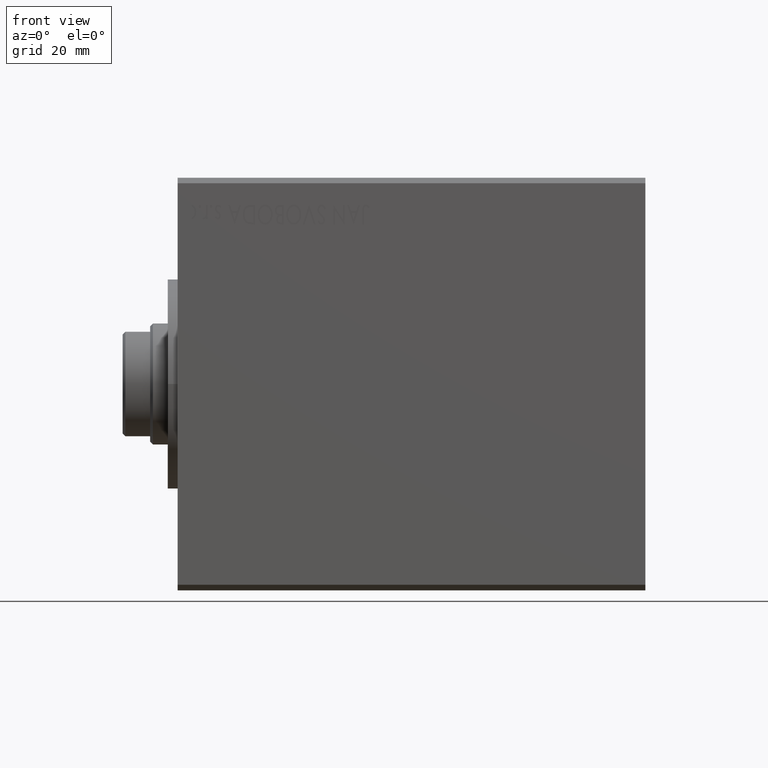
[diagram: clean part render]
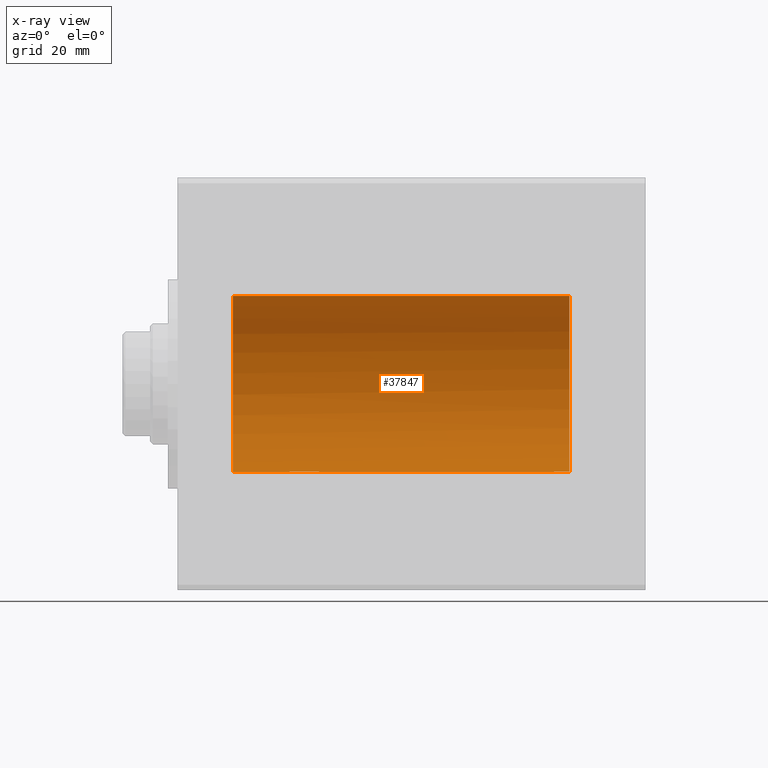
[diagram: x-ray — body ghosted, one internal face saturated and labeled with its STEP entity id]
A machine part, front view, then the same camera in x-ray: the body is ghosted and one INTERNAL B-rep face — a face not visible from any outside direction — is saturated and labeled: STEP entity #37847.
In plain terms, the highlighted cylindrical surface (partial cylindrical patch) has radius 16 mm, axis along (-1, -0, -0).
Its self-contained STEP definition (entity closure, byte-faithful):
#567 = CARTESIAN_POINT ( 'NONE',  ( 71.20000000000000284, 1.786057109949259036, -15.89999999999998970 ) ) ;
#1291 = VERTEX_POINT ( 'NONE', #4681 ) ;
#1979 = DIRECTION ( 'NONE',  ( -1.000000000000000000, -0.000000000000000000, -0.000000000000000000 ) ) ;
#3933 = VERTEX_POINT ( 'NONE', #4160 ) ;
#4160 = CARTESIAN_POINT ( 'NONE',  ( 10.00000000000000178, 1.959434878635765131E-15, -16.00000000000000000 ) ) ;
#4681 = CARTESIAN_POINT ( 'NONE',  ( 20.90894763336742912, 1.786057109949259036, -15.89999999999998970 ) ) ;
#4895 = DIRECTION ( 'NONE',  ( -1.000000000000000000, -0.000000000000000000, -0.000000000000000000 ) ) ;
#5322 = LINE ( 'NONE', #18922, #42543 ) ;
#5527 = DIRECTION ( 'NONE',  ( -1.000000000000000000, 0.000000000000000000, 0.000000000000000000 ) ) ;
#5935 = LINE ( 'NONE', #9499, #13272 ) ;
#5976 = DIRECTION ( 'NONE',  ( 0.000000000000000000, 0.000000000000000000, 1.000000000000000000 ) ) ;
#6015 = ORIENTED_EDGE ( 'NONE', *, *, #22340, .T. ) ;
#6077 = CARTESIAN_POINT ( 'NONE',  ( 20.26435230214253380, 0.3237335850403343929, -15.99751506009603652 ) ) ;
#6319 = VERTEX_POINT ( 'NONE', #42701 ) ;
#6634 = CARTESIAN_POINT ( 'NONE',  ( 68.25000000000000000, 1.952197382189107282E-15, -16.00000000000000000 ) ) ;
#7118 = CARTESIAN_POINT ( 'NONE',  ( 68.25000000000000000, 1.952197382189107282E-15, -16.00000000000000000 ) ) ;
#7372 = ORIENTED_EDGE ( 'NONE', *, *, #25455, .T. ) ;
#7484 = VECTOR ( 'NONE', #9999, 1000.000000000000000 ) ;
#7594 = EDGE_CURVE ( 'NONE', #16829, #6319, #22608, .T. ) ;
#7983 = AXIS2_PLACEMENT_3D ( 'NONE', #15137, #4895, #35481 ) ;
#8138 = CARTESIAN_POINT ( 'NONE',  ( 25.75000000000000000, 1.966672454835068530E-15, -16.00000000000000000 ) ) ;
#8760 = CARTESIAN_POINT ( 'NONE',  ( 20.25000000000000000, 1.952197298178576320E-15, -16.00000000000000000 ) ) ;
#8859 = VERTEX_POINT ( 'NONE', #8138 ) ;
#8975 = CARTESIAN_POINT ( 'NONE',  ( 20.90894763336742912, 1.786057109949259036, -15.89999999999998970 ) ) ;
#9087 = EDGE_CURVE ( 'NONE', #22942, #6319, #32203, .T. ) ;
#9499 = CARTESIAN_POINT ( 'NONE',  ( 71.20000000000000284, 1.786057109949259036, -15.89999999999998970 ) ) ;
#9999 = DIRECTION ( 'NONE',  ( -1.000000000000000000, -0.000000000000000000, -0.000000000000000000 ) ) ;
#10246 = CARTESIAN_POINT ( 'NONE',  ( 68.70828422114125544, 1.528580496451065862, -15.92742812959715337 ) ) ;
#10339 = ORIENTED_EDGE ( 'NONE', *, *, #7594, .T. ) ;
#10481 = CARTESIAN_POINT ( 'NONE',  ( 25.63617786229477957, 0.7997846173174859574, -15.98073294566550473 ) ) ;
#10678 = CARTESIAN_POINT ( 'NONE',  ( 68.26435230214252670, 0.3237335850403360027, -15.99751506009603652 ) ) ;
#10898 = CARTESIAN_POINT ( 'NONE',  ( 68.90894763336743267, 1.786057109949259036, -15.89999999999998970 ) ) ;
#12139 = DIRECTION ( 'NONE',  ( -1.000000000000000000, 0.000000000000000000, 0.000000000000000000 ) ) ;
#12673 = CIRCLE ( 'NONE', #39796, 16.00000000000000000 ) ;
#12712 = CARTESIAN_POINT ( 'NONE',  ( 20.25000000000000000, 1.952197298178576320E-15, -16.00000000000000000 ) ) ;
#12760 = CARTESIAN_POINT ( 'NONE',  ( 20.47635814035335855, 1.104555034037125516, -15.96255602784426841 ) ) ;
#12916 = B_SPLINE_CURVE_WITH_KNOTS ( 'NONE', 3,
 ( #14697, #24107, #28341, #10481, #17613, #14476, #27686, #28119 ),
 .UNSPECIFIED., .F., .F.,
 ( 4, 2, 2, 4 ),
 ( 0.000000000000000000, 0.0009687575396886391509, 0.001453136309532957046, 0.001937515079377275266 ),
 .UNSPECIFIED. ) ;
#12991 = CARTESIAN_POINT ( 'NONE',  ( 10.00000000000000178, 0.000000000000000000, 16.00000000000000000 ) ) ;
#13007 = LINE ( 'NONE', #26653, #27283 ) ;
#13272 = VECTOR ( 'NONE', #22899, 1000.000000000000000 ) ;
#13332 = CARTESIAN_POINT ( 'NONE',  ( 71.20000000000000284, 1.959434878635765131E-15, -16.00000000000000000 ) ) ;
#13946 = ORIENTED_EDGE ( 'NONE', *, *, #21664, .F. ) ;
#14453 = CARTESIAN_POINT ( 'NONE',  ( 68.36400824168859458, 0.8002234119869059414, -15.98070334047259955 ) ) ;
#14476 = CARTESIAN_POINT ( 'NONE',  ( 25.73536268302067853, 0.3260974502564771282, -15.99746611559688780 ) ) ;
#14697 = CARTESIAN_POINT ( 'NONE',  ( 25.09105236663257088, 1.786057109949259036, -15.89999999999998970 ) ) ;
#14882 = DIRECTION ( 'NONE',  ( 0.000000000000000000, 0.000000000000000000, 1.000000000000000000 ) ) ;
#15137 = CARTESIAN_POINT ( 'NONE',  ( 71.20000000000000284, 0.000000000000000000, 0.000000000000000000 ) ) ;
#16212 = CIRCLE ( 'NONE', #41185, 16.00000000000000000 ) ;
#16693 = LINE ( 'NONE', #13332, #7484 ) ;
#16799 = DIRECTION ( 'NONE',  ( -1.000000000000000000, -0.000000000000000000, -0.000000000000000000 ) ) ;
#16829 = VERTEX_POINT ( 'NONE', #6634 ) ;
#17613 = CARTESIAN_POINT ( 'NONE',  ( 25.67843830749630740, 0.6438297815899759469, -15.98783114994251697 ) ) ;
#18229 = CARTESIAN_POINT ( 'NONE',  ( 71.20000000000000284, 0.000000000000000000, 0.000000000000000000 ) ) ;
#18436 = EDGE_CURVE ( 'NONE', #16829, #8859, #16693, .T. ) ;
#18922 = CARTESIAN_POINT ( 'NONE',  ( 71.20000000000000284, 1.959434878635765131E-15, -16.00000000000000000 ) ) ;
#19459 = CARTESIAN_POINT ( 'NONE',  ( 20.80302300273467964, 1.662044306363391177, -15.91393043707981292 ) ) ;
#19680 = CARTESIAN_POINT ( 'NONE',  ( 20.70828422114123057, 1.528580496451064752, -15.92742812959714982 ) ) ;
#20237 = ORIENTED_EDGE ( 'NONE', *, *, #34985, .T. ) ;
#20739 = CARTESIAN_POINT ( 'NONE',  ( 68.47635814035334079, 1.104555034037120853, -15.96255602784426841 ) ) ;
#21189 = CYLINDRICAL_SURFACE ( 'NONE', #7983, 16.00000000000000000 ) ;
#21664 = EDGE_CURVE ( 'NONE', #43096, #3933, #5322, .T. ) ;
#21941 = EDGE_CURVE ( 'NONE', #33020, #1291, #5935, .T. ) ;
#22267 = VECTOR ( 'NONE', #39128, 1000.000000000000000 ) ;
#22340 = EDGE_CURVE ( 'NONE', #33020, #8859, #12916, .T. ) ;
#22608 = B_SPLINE_CURVE_WITH_KNOTS ( 'NONE', 3,
 ( #7118, #41287, #10678, #34793, #14453, #20739, #40628, #10246, #41497, #10898 ),
 .UNSPECIFIED., .F., .F.,
 ( 4, 2, 2, 2, 4 ),
 ( 0.001937515079377274182, 0.002421672136522719492, 0.002905829193668165236, 0.003389986250813610113, 0.003874143307959055423 ),
 .UNSPECIFIED. ) ;
#22899 = DIRECTION ( 'NONE',  ( -1.000000000000000000, -0.000000000000000000, -0.000000000000000000 ) ) ;
#22942 = VERTEX_POINT ( 'NONE', #567 ) ;
#23679 = ORIENTED_EDGE ( 'NONE', *, *, #21941, .F. ) ;
#23978 = EDGE_CURVE ( 'NONE', #43096, #1291, #29856, .T. ) ;
#23991 = ORIENTED_EDGE ( 'NONE', *, *, #18436, .F. ) ;
#24107 = CARTESIAN_POINT ( 'NONE',  ( 25.30299467954352011, 1.537922561208759253, -15.92787311163533914 ) ) ;
#24536 = FACE_OUTER_BOUND ( 'NONE', #28128, .T. ) ;
#25162 = ORIENTED_EDGE ( 'NONE', *, *, #40721, .F. ) ;
#25455 = EDGE_CURVE ( 'NONE', #31834, #3933, #16212, .T. ) ;
#26065 = VERTEX_POINT ( 'NONE', #29931 ) ;
#26653 = CARTESIAN_POINT ( 'NONE',  ( 71.20000000000000284, 0.000000000000000000, 16.00000000000000000 ) ) ;
#27283 = VECTOR ( 'NONE', #16799, 1000.000000000000000 ) ;
#27686 = CARTESIAN_POINT ( 'NONE',  ( 25.75000000000000355, 0.1629275007895856497, -16.00000000000000000 ) ) ;
#28119 = CARTESIAN_POINT ( 'NONE',  ( 25.75000000000000000, 1.966672454835068530E-15, -16.00000000000000000 ) ) ;
#28128 = EDGE_LOOP ( 'NONE', ( #23991, #10339, #42750, #25162, #20237, #7372, #13946, #39184, #23679, #6015 ) ) ;
#28341 = CARTESIAN_POINT ( 'NONE',  ( 25.46669777805105639, 1.258673386848676135, -15.95335904956524864 ) ) ;
#29856 = B_SPLINE_CURVE_WITH_KNOTS ( 'NONE', 3,
 ( #8760, #36676, #6077, #43134, #36016, #12760, #39580, #19680, #19459, #8975 ),
 .UNSPECIFIED., .F., .F.,
 ( 4, 2, 2, 2, 4 ),
 ( 0.001937515079377276567, 0.002421672136522722528, 0.002905829193668168706, 0.003389986250813614450, 0.003874143307959060194 ),
 .UNSPECIFIED. ) ;
#29931 = CARTESIAN_POINT ( 'NONE',  ( 71.20000000000000284, 0.000000000000000000, 16.00000000000000000 ) ) ;
#31834 = VERTEX_POINT ( 'NONE', #12991 ) ;
#32203 = LINE ( 'NONE', #32425, #22267 ) ;
#32425 = CARTESIAN_POINT ( 'NONE',  ( 71.20000000000000284, 1.786057109949259036, -15.89999999999998970 ) ) ;
#32991 = CARTESIAN_POINT ( 'NONE',  ( 10.00000000000000178, 0.000000000000000000, 0.000000000000000000 ) ) ;
#33020 = VERTEX_POINT ( 'NONE', #34811 ) ;
#34793 = CARTESIAN_POINT ( 'NONE',  ( 68.32103554224153186, 0.6416550435731660507, -15.98791951246752241 ) ) ;
#34811 = CARTESIAN_POINT ( 'NONE',  ( 25.09105236663257088, 1.786057109949259036, -15.89999999999998970 ) ) ;
#34985 = EDGE_CURVE ( 'NONE', #26065, #31834, #13007, .T. ) ;
#35481 = DIRECTION ( 'NONE',  ( 0.000000000000000000, 0.000000000000000000, 1.000000000000000000 ) ) ;
#36016 = CARTESIAN_POINT ( 'NONE',  ( 20.36400824168861234, 0.8002234119869107154, -15.98070334047259777 ) ) ;
#36676 = CARTESIAN_POINT ( 'NONE',  ( 20.25000000000000000, 0.1628529246558463039, -16.00000000000000000 ) ) ;
#37847 = ADVANCED_FACE ( 'NONE', ( #24536 ), #21189, .F. ) ;
#39128 = DIRECTION ( 'NONE',  ( -1.000000000000000000, -0.000000000000000000, -0.000000000000000000 ) ) ;
#39184 = ORIENTED_EDGE ( 'NONE', *, *, #23978, .T. ) ;
#39580 = CARTESIAN_POINT ( 'NONE',  ( 20.54529199024537789, 1.250171241089528928, -15.95169574138015278 ) ) ;
#39796 = AXIS2_PLACEMENT_3D ( 'NONE', #18229, #12139, #14882 ) ;
#40628 = CARTESIAN_POINT ( 'NONE',  ( 68.54529199024538855, 1.250171241089530927, -15.95169574138015989 ) ) ;
#40721 = EDGE_CURVE ( 'NONE', #26065, #22942, #12673, .T. ) ;
#41185 = AXIS2_PLACEMENT_3D ( 'NONE', #32991, #5527, #5976 ) ;
#41287 = CARTESIAN_POINT ( 'NONE',  ( 68.24999999999997158, 0.1628529246558471921, -16.00000000000000000 ) ) ;
#41497 = CARTESIAN_POINT ( 'NONE',  ( 68.80302300273470451, 1.662044306363391621, -15.91393043707982002 ) ) ;
#42543 = VECTOR ( 'NONE', #1979, 1000.000000000000000 ) ;
#42701 = CARTESIAN_POINT ( 'NONE',  ( 68.90894763336743267, 1.786057109949259036, -15.89999999999998970 ) ) ;
#42750 = ORIENTED_EDGE ( 'NONE', *, *, #9087, .F. ) ;
#43096 = VERTEX_POINT ( 'NONE', #12712 ) ;
#43134 = CARTESIAN_POINT ( 'NONE',  ( 20.32103554224154607, 0.6416550435731651625, -15.98791951246752241 ) ) ;